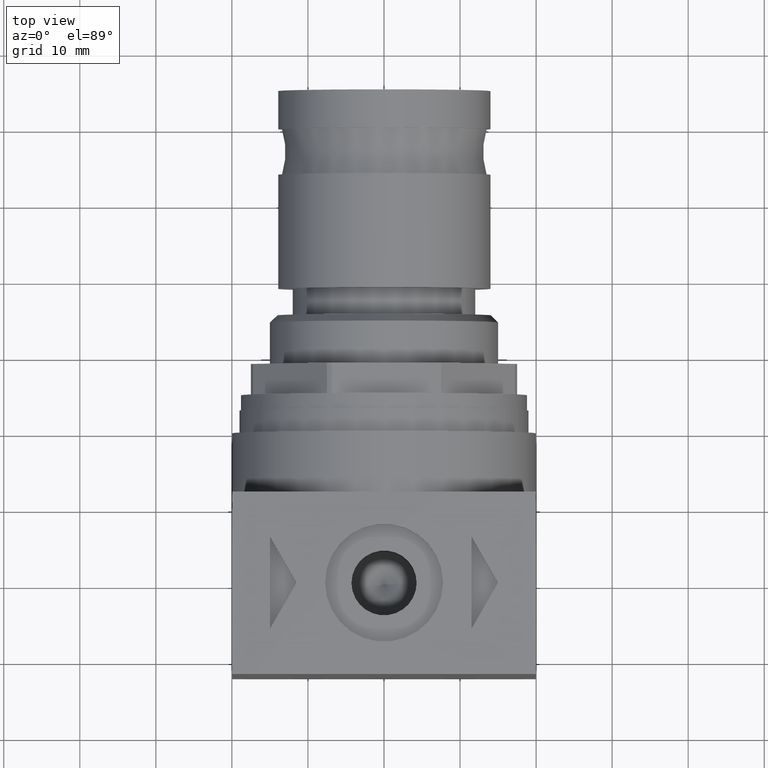
[diagram: clean part render]
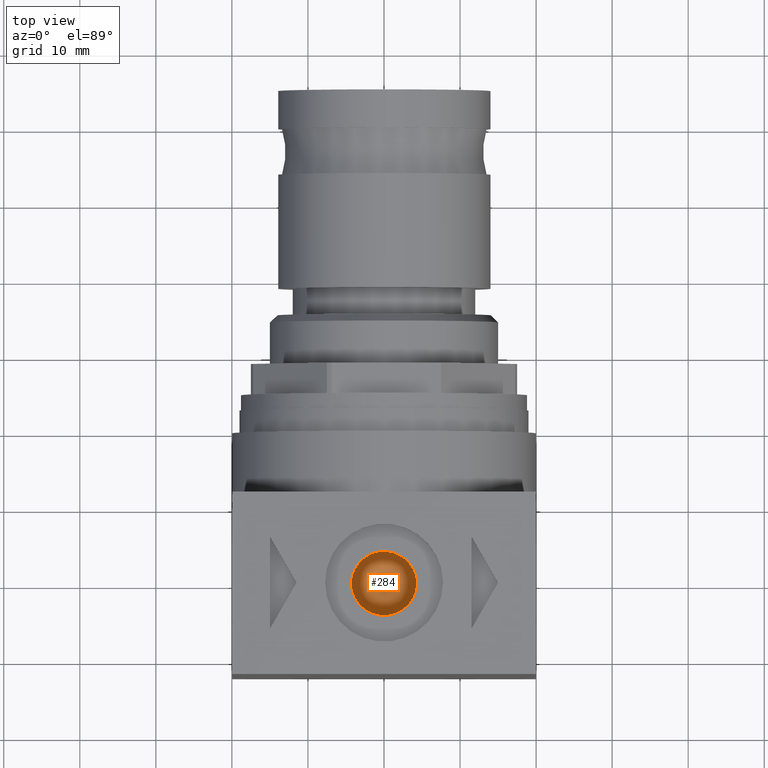
[diagram: same view with one face highlighted and labeled with its STEP entity id]
A machine part, top view. The second image highlights one B-rep face of the part: STEP entity #284.
In plain terms, the highlighted conical surface has half-angle 60 deg.
Its self-contained STEP definition (entity closure, byte-faithful):
#284 = ADVANCED_FACE( '', ( #626, #627 ), #628, .F. );
#626 = FACE_BOUND( '', #1071, .T. );
#627 = FACE_OUTER_BOUND( '', #1072, .T. );
#628 = CONICAL_SURFACE( '', #1073, 4.28300000000000, 1.04719755119660 );
#1071 = VERTEX_LOOP( '', #1672 );
#1072 = EDGE_LOOP( '', ( #1673 ) );
#1073 = AXIS2_PLACEMENT_3D( '', #1674, #1675, #1676 );
#1672 = VERTEX_POINT( '', #2581 );
#1673 = ORIENTED_EDGE( '', *, *, #2582, .F. );
#1674 = CARTESIAN_POINT( '', ( 0.000000000000000, 0.000000000000000, 10.2000000000000 ) );
#1675 = DIRECTION( '', ( 0.000000000000000, -0.000000000000000, 1.00000000000000 ) );
#1676 = DIRECTION( '', ( 1.00000000000000, 0.000000000000000, -0.000000000000000 ) );
#2581 = CARTESIAN_POINT( '', ( 0.000000000000000, 0.000000000000000, 7.72720879706083 ) );
#2582 = EDGE_CURVE( '', #3077, #3077, #3078, .T. );
#3077 = VERTEX_POINT( '', #3744 );
#3078 = CIRCLE( '', #3745, 4.28300000000000 );
#3744 = CARTESIAN_POINT( '', ( -4.28300000000000, 0.000000000000000, 10.2000000000000 ) );
#3745 = AXIS2_PLACEMENT_3D( '', #4322, #4323, #4324 );
#4322 = CARTESIAN_POINT( '', ( 0.000000000000000, 0.000000000000000, 10.2000000000000 ) );
#4323 = DIRECTION( '', ( -0.000000000000000, 0.000000000000000, -1.00000000000000 ) );
#4324 = DIRECTION( '', ( -1.00000000000000, 0.000000000000000, 0.000000000000000 ) );